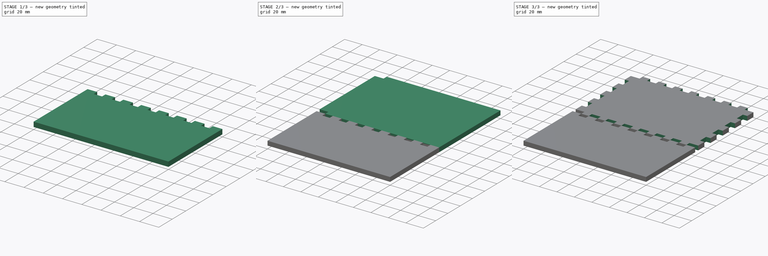
[diagram: build sequence overview — one tinted view per stage of 3, left to right]
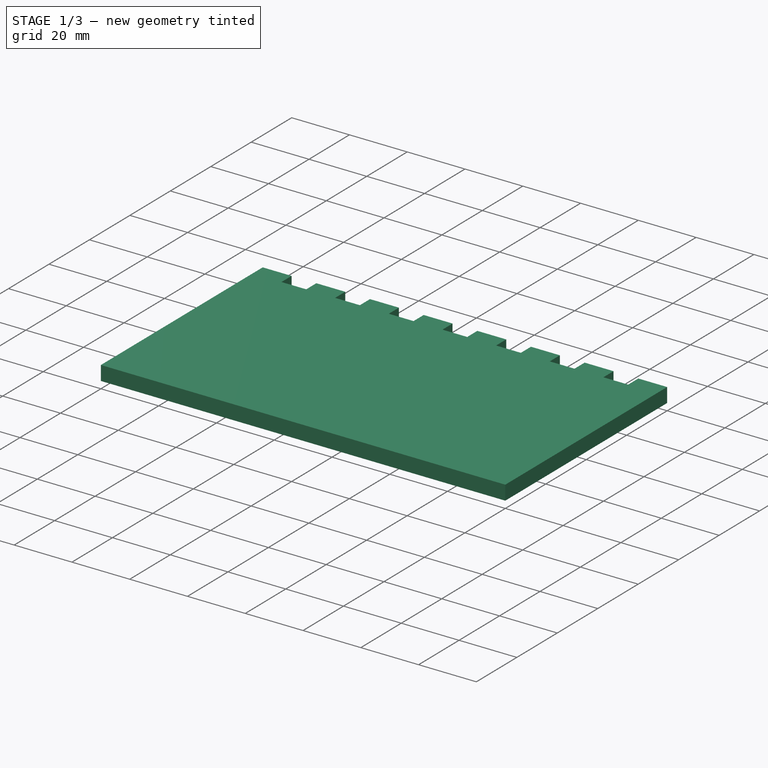
[diagram: stage 1 of 3 — iso view after this stage's code; geometry added in this stage tinted green]
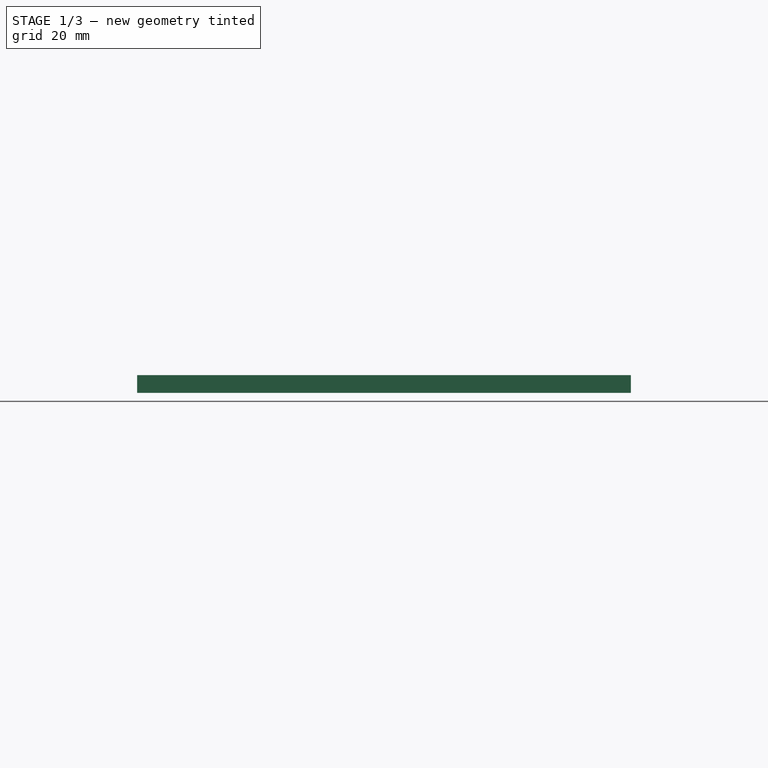
[diagram: stage 1 of 3 — front view after this stage's code; geometry added in this stage tinted green]
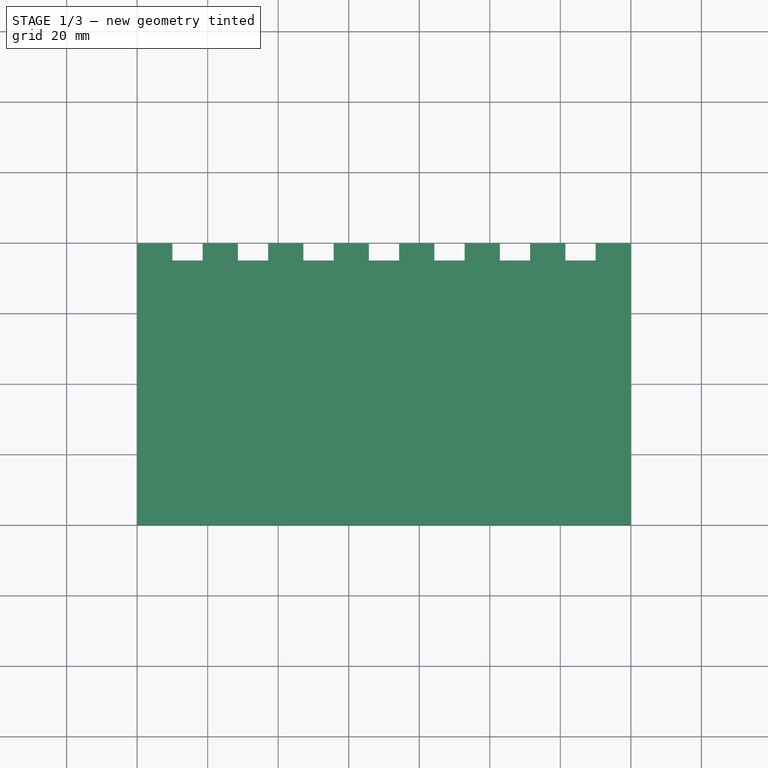
[diagram: stage 1 of 3 — top view after this stage's code; geometry added in this stage tinted green]
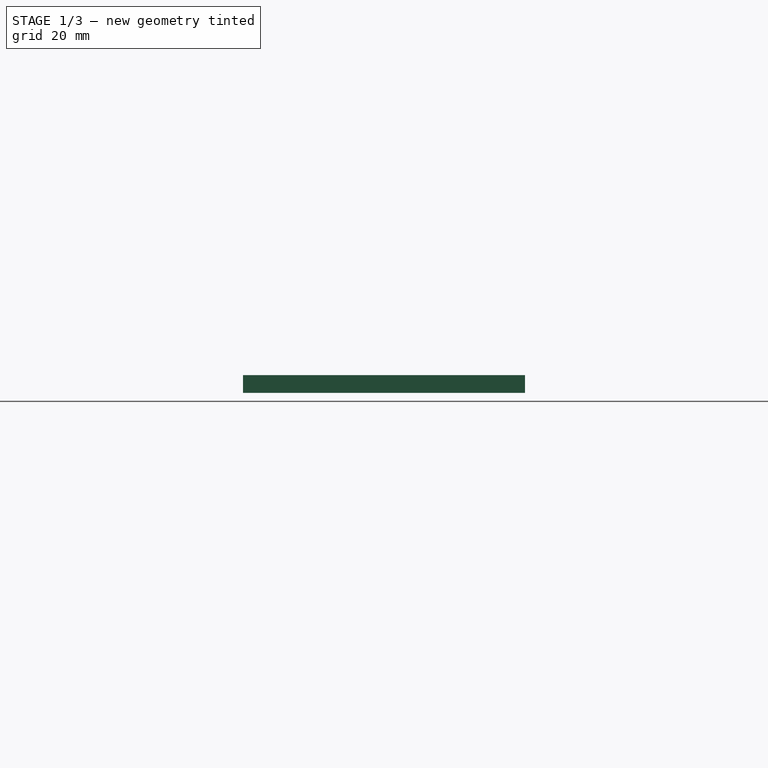
[diagram: stage 1 of 3 — right view after this stage's code; geometry added in this stage tinted green]
FCSTD DOCUMENT  (FreeCAD 0.18R4 (GitTag))
Label: boitier_alim_V1
License: All rights reserved
LicenseURL: http://en.wikipedia.org/wiki/All_rights_reserved
objects: Sketcher::SketchObject×6, PartDesign::Pocket×3, PartDesign::LinearPattern×3, PartDesign::Pad×2, PartDesign::Body×2, App::Part×2, Spreadsheet::Sheet×1
note: 21 computed .brp shape members not serialized (recipe doc carries the construction recipe); baked Part::Feature solids carry a one-line shape summary decoded from their .brp

FEATURE [PartDesign::Body] Body  label="Body_boitier_bas"
  Group = -> [Sketch,Pad,Sketch001,Sketch002,Pocket,LinearPattern,Sketch003,Pocket001,LinearPattern001]
  Origin = -> Origin001
  Tip = -> LinearPattern001
FEATURE [App::Part] Part  label="Part_boitier_bas"
  Group = -> [Body]
  Origin = -> Origin
FEATURE [Sketcher::SketchObject] Sketch004
  MapMode = 5
  Support = -> [XY_Plane003]
  expr: Constraints[10] = Spreadsheet_dimensions_boitier_alim_V1.dim_hauteur_boitier
  expr: Constraints[9] = Spreadsheet_dimensions_boitier_alim_V1.dim_longueur_boitier
  sketch-geometry (4):
    g0: LineSegment StartX=0 StartY=0 StartZ=0 EndX=140 EndY=0 EndZ=0
    g1: LineSegment StartX=140 StartY=0 StartZ=0 EndX=140 EndY=-80 EndZ=0
    g2: LineSegment StartX=140 StartY=-80 StartZ=0 EndX=0 EndY=-80 EndZ=0
    g3: LineSegment StartX=0 StartY=-80 StartZ=0 EndX=0 EndY=0 EndZ=0
  constraints (11):
    c: Coincident(g0,g1)
    c: Coincident(g1,g2)
    c: Coincident(g2,g3)
    c: Coincident(g3,g0)
    c: Horizontal(g0)
    c: Horizontal(g2)
    c: Vertical(g1)
    c: Vertical(g3)
    c: Coincident(g-1,g0)
    c: DistanceX(g0,g0) = 140
    c: DistanceY(g3,g3) = 80
FEATURE [PartDesign::Pad] Pad001
  Length = 5
  Length2 = 100
  Profile = -> Sketch004
  Type = 0
  expr: Length = Spreadsheet_dimensions_boitier_alim_V1.dim_epaisseur_plaque
FEATURE [Sketcher::SketchObject] Sketch005
  MapMode = 5
  Placement = pos=(0,0,5) rot=(0,0,1;0rad)
  Support = -> [Pad001]
  expr: Constraints[9] = Spreadsheet_dimensions_boitier_alim_V1.dim_espace_encoche_longueur
  expr: Constraints[11] = Spreadsheet_dimensions_boitier_alim_V1.dim_largeur_encoche
  expr: Constraints[10] = Spreadsheet_dimensions_boitier_alim_V1.dim_longueur_encoche
  sketch-geometry (4):
    g0: LineSegment StartX=10 StartY=0 StartZ=0 EndX=18.5714 EndY=0 EndZ=0
    g1: LineSegment StartX=18.5714 StartY=0 StartZ=0 EndX=18.5714 EndY=-5 EndZ=0
    g2: LineSegment StartX=18.5714 StartY=-5 StartZ=0 EndX=10 EndY=-5 EndZ=0
    g3: LineSegment StartX=10 StartY=-5 StartZ=0 EndX=10 EndY=0 EndZ=0
  constraints (12):
    c: Coincident(g0,g1)
    c: Coincident(g1,g2)
    c: Coincident(g2,g3)
    c: Coincident(g3,g0)
    c: Horizontal(g0)
    c: Horizontal(g2)
    c: Vertical(g1)
    c: Vertical(g3)
    c: PointOnObject(g0,g-1)
    c: DistanceX(g0,g0) = 8.57143
    c: DistanceX(g-1,g0) = 10
    c: DistanceY(g3,g3) = 5
FEATURE [PartDesign::Pocket] Pocket002
  BaseFeature = -> Pad001
  Length = 5
  Length2 = 100
  Profile = -> Sketch005
  Type = 1
FEATURE [PartDesign::LinearPattern] LinearPattern002
  BaseFeature = -> Pocket002
  Direction = -> Sketch005 [H_Axis]
  Length = 111.45
  Occurrences = 7
  Originals = -> [Pocket002]
FEATURE [PartDesign::Body] Body001  label="Body_boitier_parois_lg"
  Group = -> [Sketch004,Pad001,Sketch005,Pocket002,LinearPattern002]
  Origin = -> Origin003
  Tip = -> LinearPattern002
FEATURE [App::Part] Part001  label="Part_boitier_parois_lg"
  Group = -> [Body001]
  Origin = -> Origin002
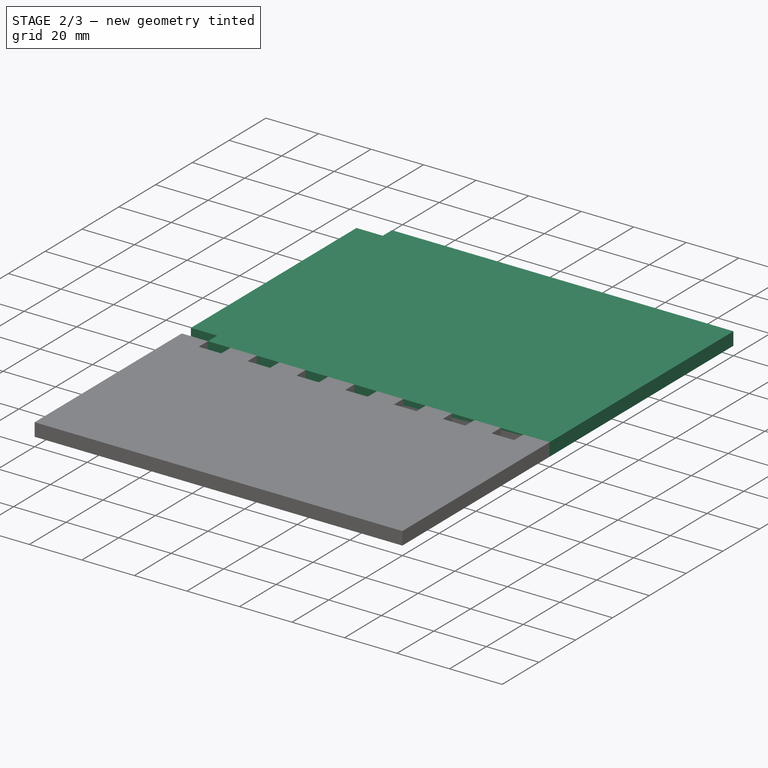
[diagram: stage 2 of 3 — iso view after this stage's code; geometry added in this stage tinted green]
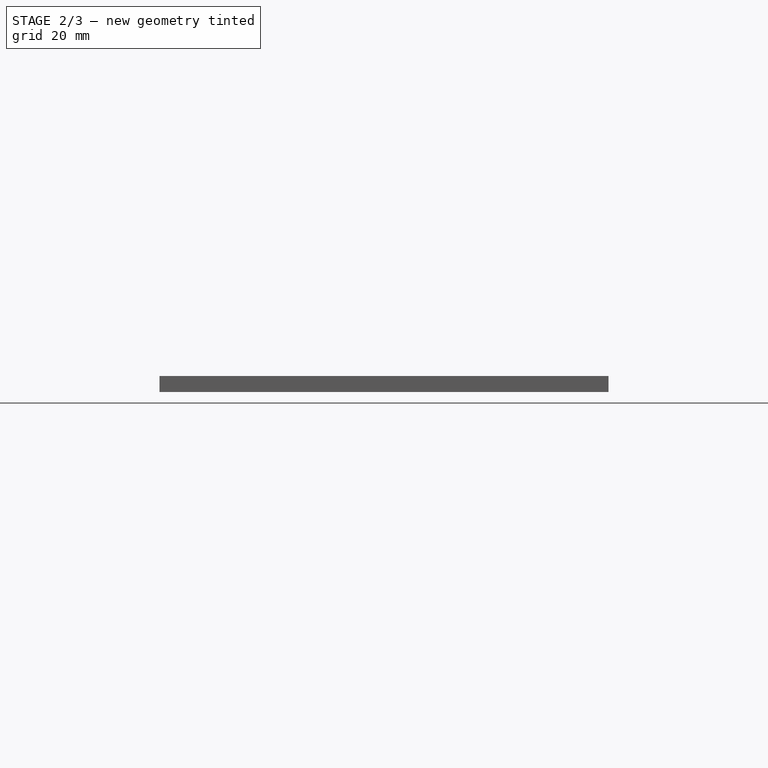
[diagram: stage 2 of 3 — front view after this stage's code; geometry added in this stage tinted green]
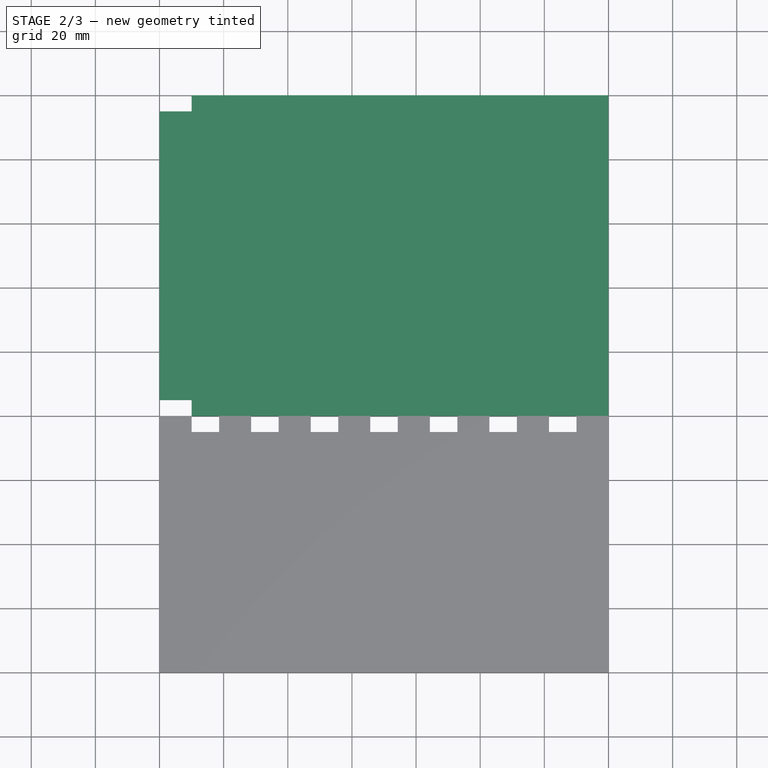
[diagram: stage 2 of 3 — top view after this stage's code; geometry added in this stage tinted green]
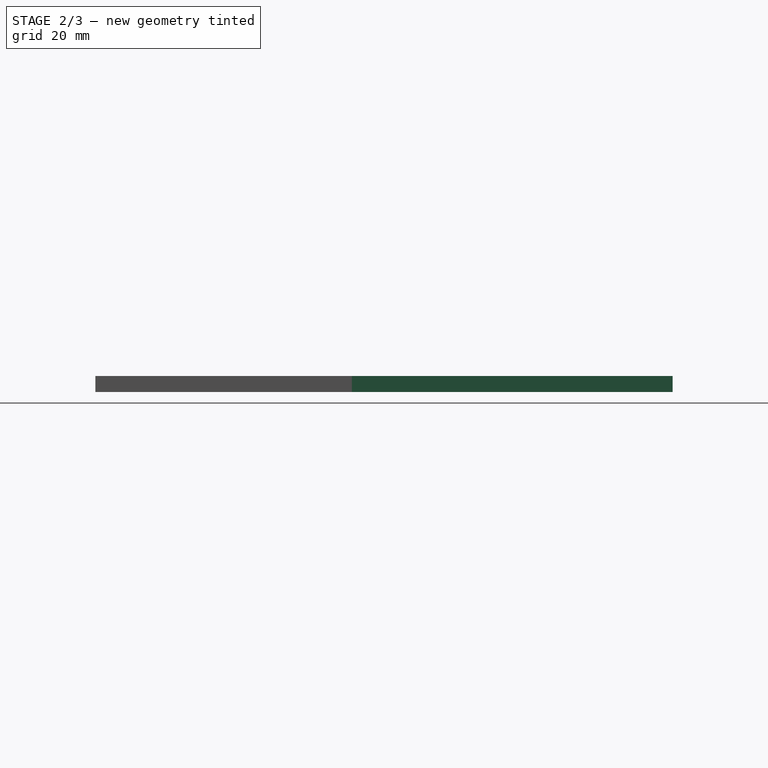
[diagram: stage 2 of 3 — right view after this stage's code; geometry added in this stage tinted green]
FEATURE [Spreadsheet::Sheet] Spreadsheet  label="Spreadsheet_dimensions_boitier_alim_V1"
  cells = A1=dim_largeur_boitier (mm); B1=dim_longueur_boitier (mm); C1=dim_epaisseur_plaque (mm); D1=dim_hauteur_boitier (mm); A2(dim_largeur_boitier)==100mm; B2(dim_longueur_boitier)==140mm; C2(dim_epaisseur_plaque)==5mm; D2(dim_hauteur_boitier)==80mm; A5=dim_largeur_encoche (mm); B5=dim_espace_encoche_longueur (mm); C5=dim_espace_encoche_largeur (mm); A6(dim_largeur_encoche)==1 * dim_epaisseur_plaque; B6(dim_espace_encoche_longueur)==(dim_longueur_boitier - nb_encoche_longueur * dim_longueur_encoche) / nb_espace_encoche_longueur; A8=nb_encoche_longueur; B8=nb_espace_encoche_longueur; C8=nb_encoche_largeur; A9(nb_encoche_longueur)=8; B9(nb_espace_encoche_longueur)==nb_encoche_longueur - 1; C9(nb_encoche_largeur)=4; A11=dim_longueur_encoche (mm); B11=dim_longueur_linear_patern_longueur (mm); A12(dim_longueur_encoche)==10mm; B12(dim_longueur_linear_pattern_longueur)==dim_longueur_boitier - dim_longueur_encoche; A14=dim_espace_bord_longueur (mm); A15(dim_espace_bord)==0mm; A17=dim_espace_bord_largeur (mm); A18(dim_espace_bord_largeur)==dim_longueur_encoche + dim_largeur_encoche
FEATURE [Sketcher::SketchObject] Sketch  label="Sketch_boitier_bas"
  MapMode = 5
  Support = -> [XY_Plane001]
  expr: Constraints[10] = Spreadsheet_dimensions_boitier_alim_V1.dim_largeur_boitier
  expr: Constraints[9] = Spreadsheet_dimensions_boitier_alim_V1.dim_longueur_boitier
  sketch-geometry (4):
    g0: LineSegment StartX=0 StartY=0 StartZ=0 EndX=140 EndY=0 EndZ=0
    g1: LineSegment StartX=140 StartY=0 StartZ=0 EndX=140 EndY=100 EndZ=0
    g2: LineSegment StartX=140 StartY=100 StartZ=0 EndX=0 EndY=100 EndZ=0
    g3: LineSegment StartX=0 StartY=100 StartZ=0 EndX=0 EndY=0 EndZ=0
  constraints (11):
    c: Coincident(g0,g1)
    c: Coincident(g1,g2)
    c: Coincident(g2,g3)
    c: Coincident(g3,g0)
    c: Horizontal(g0)
    c: Horizontal(g2)
    c: Vertical(g1)
    c: Vertical(g3)
    c: Coincident(g0,g-1)
    c: DistanceX(g0,g0) = 140
    c: DistanceY(g3,g3) = 100
FEATURE [PartDesign::Pad] Pad
  Length = 5
  Length2 = 100
  Profile = -> Sketch
  Type = 0
  expr: Length = Spreadsheet_dimensions_boitier_alim_V1.dim_epaisseur_plaque
FEATURE [Sketcher::SketchObject] Sketch001  label="Sketch_espace_placement_composants"
  ExternalGeometry = -> [Pad]
  MapMode = 5
  Placement = pos=(0,0,5) rot=(0,0,1;0rad)
  Support = -> [Pad]
  expr: Constraints[11] = Spreadsheet_dimensions_boitier_alim_V1.dim_largeur_encoche
  expr: Constraints[10] = Spreadsheet_dimensions_boitier_alim_V1.dim_largeur_encoche
  expr: Constraints[9] = Spreadsheet_dimensions_boitier_alim_V1.dim_largeur_encoche
  expr: Constraints[8] = Spreadsheet_dimensions_boitier_alim_V1.dim_largeur_encoche
  sketch-geometry (4):
    g0: LineSegment StartX=5 StartY=95 StartZ=0 EndX=135 EndY=95 EndZ=0
    g1: LineSegment StartX=135 StartY=95 StartZ=0 EndX=135 EndY=5 EndZ=0
    g2: LineSegment StartX=135 StartY=5 StartZ=0 EndX=5 EndY=5 EndZ=0
    g3: LineSegment StartX=5 StartY=5 StartZ=0 EndX=5 EndY=95 EndZ=0
  constraints (12):
    c: Coincident(g0,g1)
    c: Coincident(g1,g2)
    c: Coincident(g2,g3)
    c: Coincident(g3,g0)
    c: Horizontal(g0)
    c: Horizontal(g2)
    c: Vertical(g1)
    c: Vertical(g3)
    c: DistanceX(g-1,g2) = 5
    c: DistanceY(g-1,g2) = 5
    c: DistanceX(g0,g-3) = 5
    c: DistanceY(g0,g-3) = 5
FEATURE [Sketcher::SketchObject] Sketch002  label="Sketch_encoche_rm_longueur"
  ExternalGeometry = -> [Pad]
  MapMode = 5
  Placement = pos=(0,0,5) rot=(0,0,1;0rad)
  Support = -> [Pad]
  expr: Constraints[23] = Spreadsheet_dimensions_boitier_alim_V1.dim_espace_bord
  expr: Constraints[21] = Spreadsheet_dimensions_boitier_alim_V1.dim_largeur_encoche
  expr: Constraints[20] = Spreadsheet_dimensions_boitier_alim_V1.dim_longueur_encoche
  expr: Constraints[11] = Spreadsheet_dimensions_boitier_alim_V1.dim_espace_bord
  expr: Constraints[9] = Spreadsheet_dimensions_boitier_alim_V1.dim_longueur_encoche
  expr: Constraints[8] = Spreadsheet_dimensions_boitier_alim_V1.dim_largeur_encoche
  sketch-geometry (8):
    g0: LineSegment StartX=0 StartY=0 StartZ=0 EndX=10 EndY=0 EndZ=0
    g1: LineSegment StartX=10 StartY=0 StartZ=0 EndX=10 EndY=5 EndZ=0
    g2: LineSegment StartX=10 StartY=5 StartZ=0 EndX=0 EndY=5 EndZ=0
    g3: LineSegment StartX=0 StartY=5 StartZ=0 EndX=0 EndY=0 EndZ=0
    g4: LineSegment StartX=0 StartY=100 StartZ=0 EndX=10 EndY=100 EndZ=0
    g5: LineSegment StartX=10 StartY=100 StartZ=0 EndX=10 EndY=95 EndZ=0
    g6: LineSegment StartX=10 StartY=95 StartZ=0 EndX=0 EndY=95 EndZ=0
    g7: LineSegment StartX=0 StartY=95 StartZ=0 EndX=0 EndY=100 EndZ=0
  constraints (24):
    c: Coincident(g0,g1)
    c: Coincident(g1,g2)
    c: Coincident(g2,g3)
    c: Coincident(g3,g0)
    c: Horizontal(g0)
    c: Horizontal(g2)
    c: Vertical(g1)
    c: Vertical(g3)
    c: DistanceY(g3,g3) = 5
    c: DistanceX(g0,g0) = 10
    c: PointOnObject(g0,g-1)
    c: DistanceX(g-1,g0) = 0
    c: Coincident(g4,g5)
    c: Coincident(g5,g6)
    c: Coincident(g6,g7)
    c: Coincident(g7,g4)
    c: Horizontal(g4)
    c: Horizontal(g6)
    c: Vertical(g5)
    c: Vertical(g7)
    c: DistanceX(g4,g4) = 10
    c: DistanceY(g7,g7) = 5
    c: PointOnObject(g4,g-3)
    c: DistanceX(g-3,g4) = 0
FEATURE [PartDesign::Pocket] Pocket
  BaseFeature = -> Pad
  Length = 5
  Length2 = 100
  Profile = -> Sketch002
  Type = 1
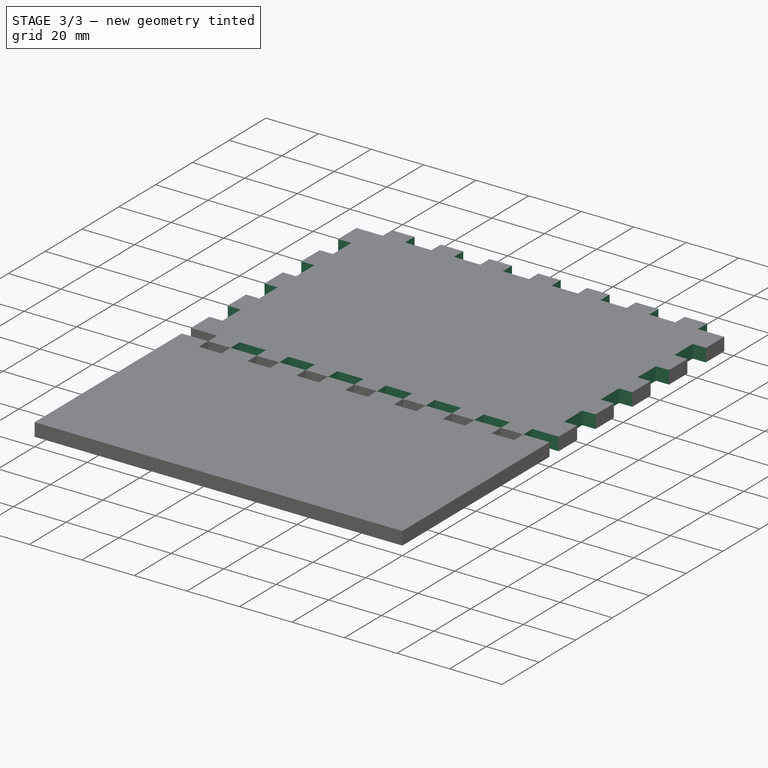
[diagram: stage 3 of 3 — iso view after this stage's code; geometry added in this stage tinted green]
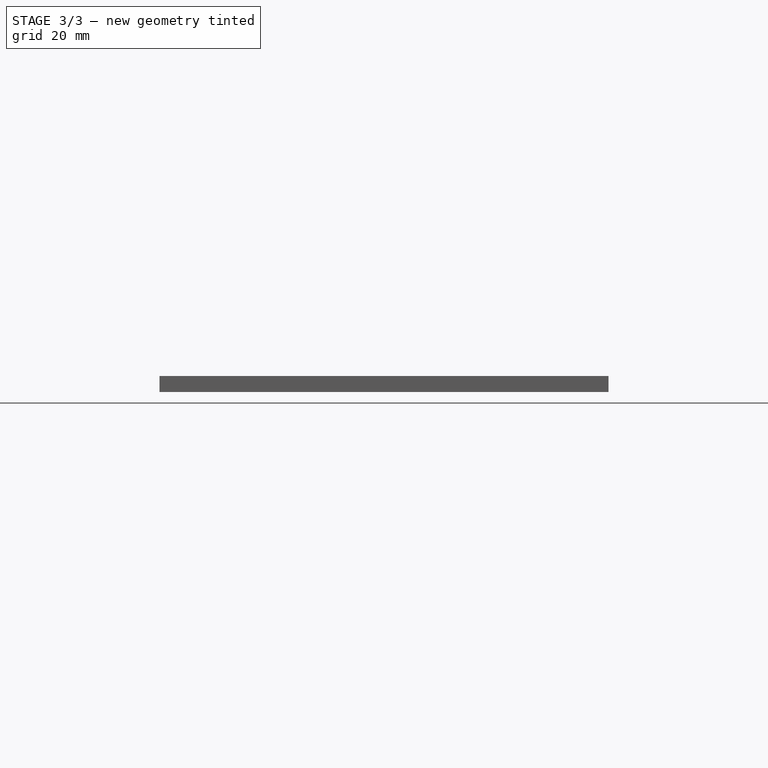
[diagram: stage 3 of 3 — front view after this stage's code; geometry added in this stage tinted green]
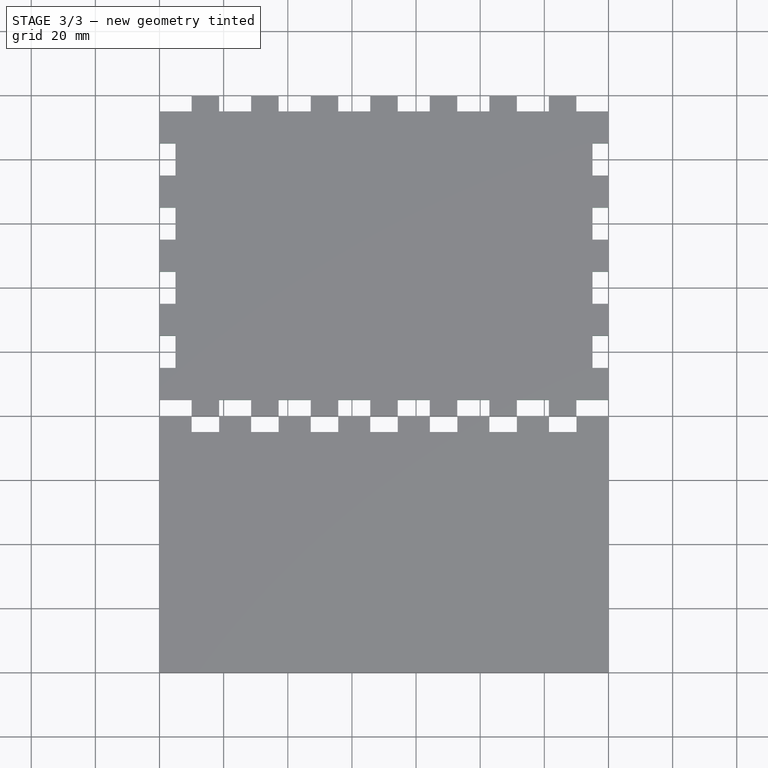
[diagram: stage 3 of 3 — top view after this stage's code; geometry added in this stage tinted green]
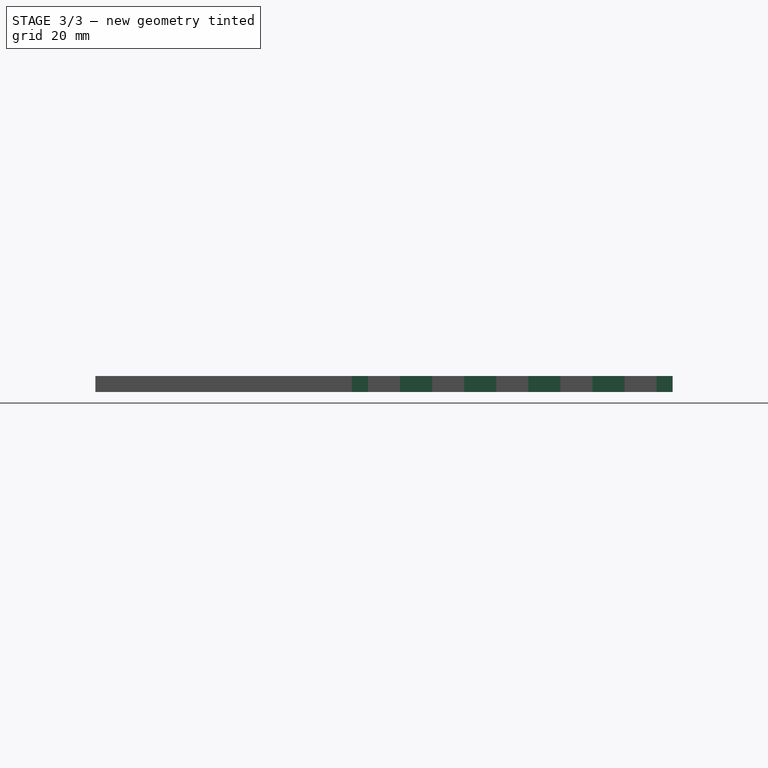
[diagram: stage 3 of 3 — right view after this stage's code; geometry added in this stage tinted green]
FEATURE [PartDesign::LinearPattern] LinearPattern
  BaseFeature = -> Pocket
  Direction = -> Sketch002 [H_Axis]
  Length = 130
  Occurrences = 8
  Originals = -> [Pocket]
  expr: Length = Spreadsheet_dimensions_boitier_alim_V1.dim_longueur_linear_pattern_longueur
  expr: Occurrences = Spreadsheet_dimensions_boitier_alim_V1.nb_encoche_longueur
FEATURE [Sketcher::SketchObject] Sketch003
  ExternalGeometry = -> [Sketch001]
  MapMode = 5
  Placement = pos=(0,0,5) rot=(0,0,1;0rad)
  Support = -> [LinearPattern]
  expr: Constraints[23] = Spreadsheet_dimensions_boitier_alim_V1.dim_longueur_encoche
  expr: Constraints[21] = Spreadsheet_dimensions_boitier_alim_V1.dim_largeur_encoche
  expr: Constraints[11] = Spreadsheet_dimensions_boitier_alim_V1.dim_espace_bord_largeur
  expr: Constraints[22] = Spreadsheet_dimensions_boitier_alim_V1.dim_espace_bord_largeur
  expr: Constraints[9] = Spreadsheet_dimensions_boitier_alim_V1.dim_longueur_encoche
  expr: Constraints[8] = Spreadsheet_dimensions_boitier_alim_V1.dim_largeur_encoche
  sketch-geometry (8):
    g0: LineSegment StartX=5 StartY=15 StartZ=0 EndX=0 EndY=15 EndZ=0
    g1: LineSegment StartX=0 StartY=15 StartZ=0 EndX=0 EndY=25 EndZ=0
    g2: LineSegment StartX=0 StartY=25 StartZ=0 EndX=5 EndY=25 EndZ=0
    g3: LineSegment StartX=5 StartY=25 StartZ=0 EndX=5 EndY=15 EndZ=0
    g4: LineSegment StartX=135 StartY=25 StartZ=0 EndX=140 EndY=25 EndZ=0
    g5: LineSegment StartX=140 StartY=25 StartZ=0 EndX=140 EndY=15 EndZ=0
    g6: LineSegment StartX=140 StartY=15 StartZ=0 EndX=135 EndY=15 EndZ=0
    g7: LineSegment StartX=135 StartY=15 StartZ=0 EndX=135 EndY=25 EndZ=0
  constraints (24):
    c: Coincident(g0,g1)
    c: Coincident(g1,g2)
    c: Coincident(g2,g3)
    c: Coincident(g3,g0)
    c: Horizontal(g0)
    c: Horizontal(g2)
    c: Vertical(g1)
    c: Vertical(g3)
    c: DistanceX(g0,g0) = 5
    c: DistanceY(g3,g3) = 10
    c: PointOnObject(g0,g-2)
    c: DistanceY(g-1,g0) = 15
    c: Coincident(g4,g5)
    c: Coincident(g5,g6)
    c: Coincident(g6,g7)
    c: Coincident(g7,g4)
    c: Horizontal(g4)
    c: Horizontal(g6)
    c: Vertical(g5)
    c: Vertical(g7)
    c: PointOnObject(g6,g-3)
    c: DistanceX(g6,g6) = 5
    c: DistanceY(g-1,g6) = 15
    c: DistanceY(g7,g7) = 10
FEATURE [PartDesign::Pocket] Pocket001
  BaseFeature = -> LinearPattern
  Length = 5
  Length2 = 100
  Profile = -> Sketch003
  Type = 1
FEATURE [PartDesign::LinearPattern] LinearPattern001
  BaseFeature = -> Pocket001
  Direction = -> Sketch003 [V_Axis]
  Length = 60
  Occurrences = 4
  Originals = -> [Pocket001]
  expr: Occurrences = Spreadsheet_dimensions_boitier_alim_V1.nb_encoche_largeur
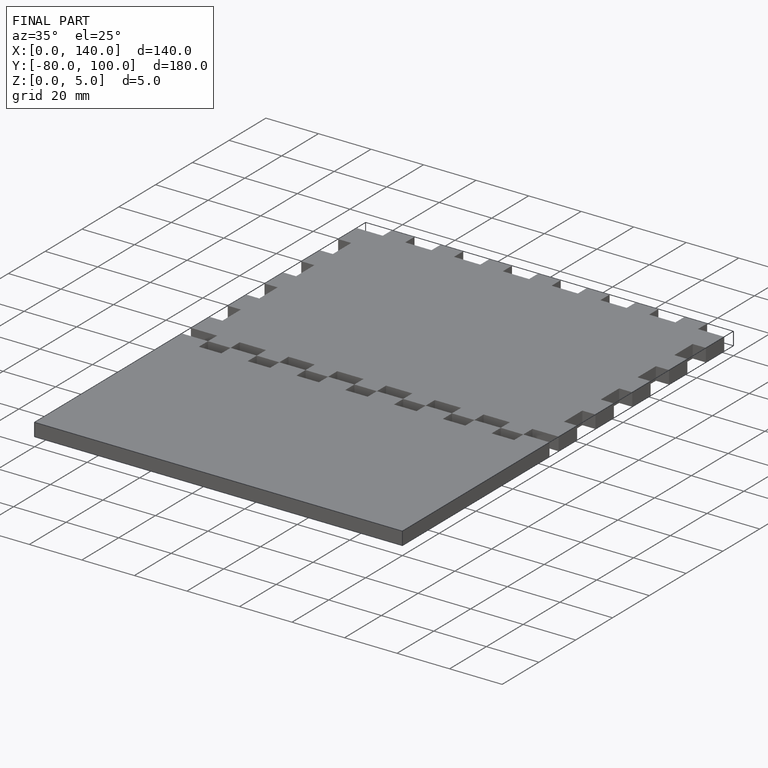
[diagram: finished part — iso view with bounding-box wireframe]
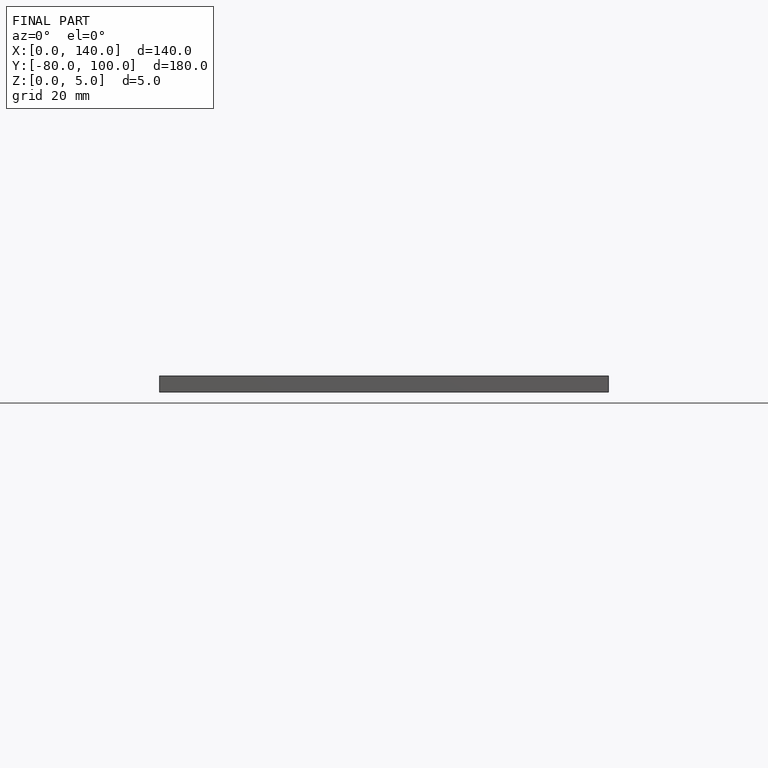
[diagram: finished part — front view with bounding-box wireframe]
